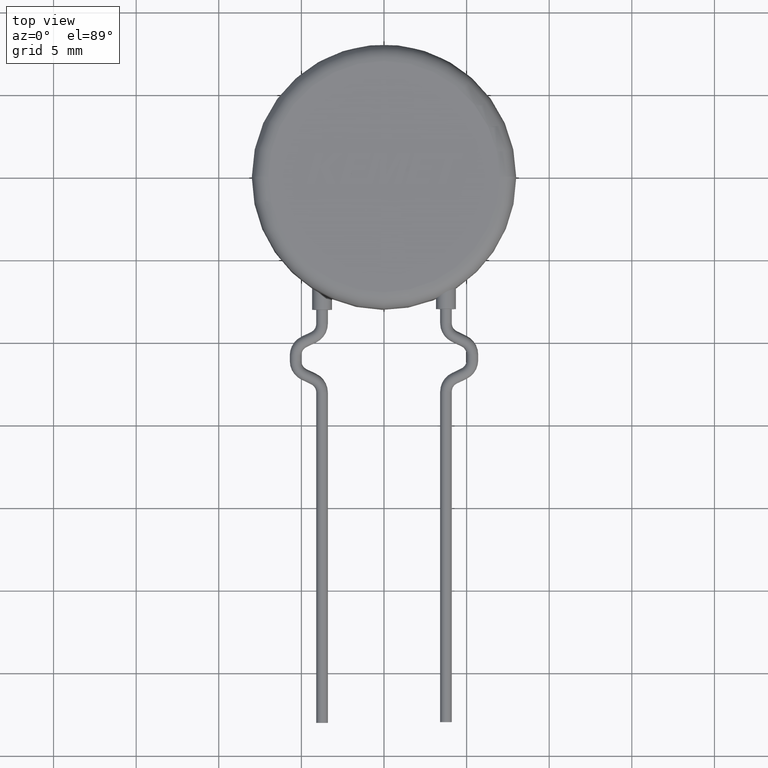
[diagram: clean part render]
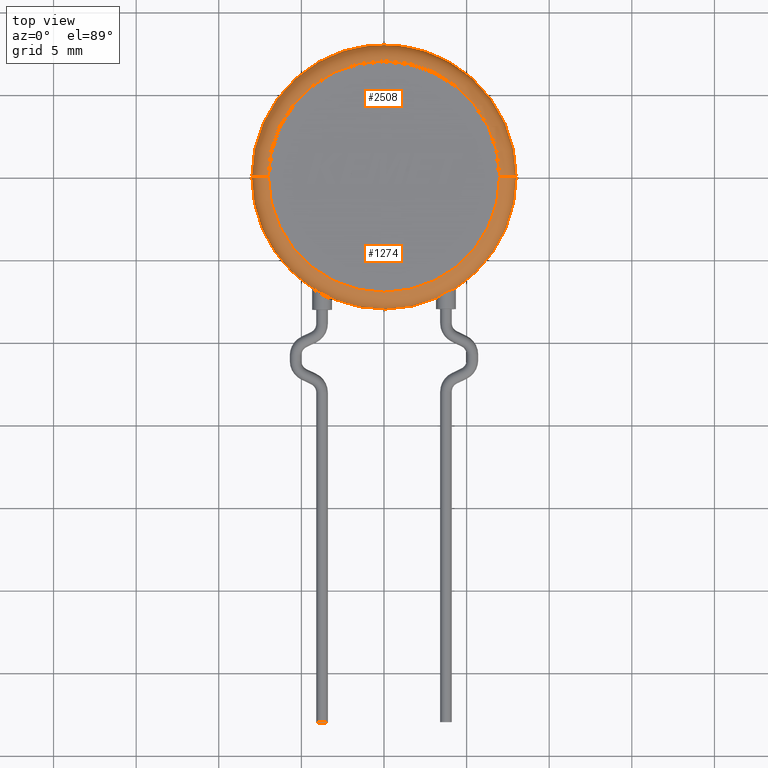
[diagram: same view with one multi-face feature highlighted, each face labeled with its STEP entity id]
A machine part, top view. The highlighted faces form ONE feature: a constant-radius fillet chain: 2 tangent blend faces with common blend radius 1 mm. The faces share edges in the B-rep.
Their STEP definitions:
[1] entity #2508 (Torus):
#106 = DIRECTION ( 'NONE',  ( 0.000000000000000000, 0.000000000000000000, 1.000000000000000000 ) ) ;
#355 = DIRECTION ( 'NONE',  ( 0.000000000000000000, -1.000000000000000000, 0.000000000000000000 ) ) ;
#390 = DIRECTION ( 'NONE',  ( 0.000000000000000000, 0.000000000000000000, 1.000000000000000000 ) ) ;
#520 = AXIS2_PLACEMENT_3D ( 'NONE', #702, #390, #2395 ) ;
#702 = CARTESIAN_POINT ( 'NONE',  ( 0.000000000000000000, 0.000000000000000000, 5.000000000000000000 ) ) ;
#885 = VERTEX_POINT ( 'NONE', #4137 ) ;
#988 = TOROIDAL_SURFACE ( 'NONE', #3443, 7.000000000000000000, 1.000000000000000000 ) ;
#995 = DIRECTION ( 'NONE',  ( 1.000000000000000000, 0.000000000000000000, 0.000000000000000000 ) ) ;
#1031 = DIRECTION ( 'NONE',  ( 0.000000000000000000, 0.000000000000000000, -1.000000000000000000 ) ) ;
#1271 = DIRECTION ( 'NONE',  ( -0.000000000000000000, -0.000000000000000000, -1.000000000000000000 ) ) ;
#1521 = FACE_OUTER_BOUND ( 'NONE', #3778, .T. ) ;
#1534 = ORIENTED_EDGE ( 'NONE', *, *, #3619, .F. ) ;
#1607 = CARTESIAN_POINT ( 'NONE',  ( 7.000000000000000000, 0.000000000000000000, 5.000000000000000000 ) ) ;
#1635 = ORIENTED_EDGE ( 'NONE', *, *, #2626, .F. ) ;
#1801 = ORIENTED_EDGE ( 'NONE', *, *, #2020, .F. ) ;
#1859 = VERTEX_POINT ( 'NONE', #1607 ) ;
#1976 = AXIS2_PLACEMENT_3D ( 'NONE', #3932, #2565, #1977 ) ;
#1977 = DIRECTION ( 'NONE',  ( -1.000000000000000000, 1.224646799147352468E-16, 0.000000000000000000 ) ) ;
#2011 = EDGE_CURVE ( 'NONE', #2862, #4199, #2804, .T. ) ;
#2020 = EDGE_CURVE ( 'NONE', #2862, #885, #2335, .T. ) ;
#2335 = CIRCLE ( 'NONE', #3378, 8.000000000000000000 ) ;
#2395 = DIRECTION ( 'NONE',  ( 1.000000000000000000, 0.000000000000000000, 0.000000000000000000 ) ) ;
#2508 = ADVANCED_FACE ( 'NONE', ( #1521 ), #988, .T. ) ;
#2565 = DIRECTION ( 'NONE',  ( 1.224646799147353207E-16, 1.000000000000000000, -0.000000000000000000 ) ) ;
#2601 = CIRCLE ( 'NONE', #520, 7.000000000000000000 ) ;
#2626 = EDGE_CURVE ( 'NONE', #1859, #4199, #2601, .T. ) ;
#2804 = CIRCLE ( 'NONE', #1976, 1.000000000000000000 ) ;
#2862 = VERTEX_POINT ( 'NONE', #3436 ) ;
#3166 = CARTESIAN_POINT ( 'NONE',  ( 0.000000000000000000, 0.000000000000000000, 4.000000000000000000 ) ) ;
#3307 = DIRECTION ( 'NONE',  ( 1.000000000000000000, 0.000000000000000000, 0.000000000000000000 ) ) ;
#3378 = AXIS2_PLACEMENT_3D ( 'NONE', #3913, #1271, #3307 ) ;
#3436 = CARTESIAN_POINT ( 'NONE',  ( -8.000000000000000000, 0.000000000000000000, 4.000000000000000000 ) ) ;
#3443 = AXIS2_PLACEMENT_3D ( 'NONE', #3166, #106, #995 ) ;
#3606 = AXIS2_PLACEMENT_3D ( 'NONE', #4324, #355, #1031 ) ;
#3619 = EDGE_CURVE ( 'NONE', #885, #1859, #4037, .T. ) ;
#3778 = EDGE_LOOP ( 'NONE', ( #1801, #4046, #1635, #1534 ) ) ;
#3859 = CARTESIAN_POINT ( 'NONE',  ( -7.000000000000000000, 9.184850993605147944E-16, 5.000000000000000000 ) ) ;
#3913 = CARTESIAN_POINT ( 'NONE',  ( 0.000000000000000000, 0.000000000000000000, 4.000000000000000000 ) ) ;
#3932 = CARTESIAN_POINT ( 'NONE',  ( -7.000000000000000000, 8.572527594031473190E-16, 4.000000000000000000 ) ) ;
#4037 = CIRCLE ( 'NONE', #3606, 1.000000000000000000 ) ;
#4046 = ORIENTED_EDGE ( 'NONE', *, *, #2011, .T. ) ;
#4137 = CARTESIAN_POINT ( 'NONE',  ( 8.000000000000000000, 9.797174393178825657E-16, 4.000000000000000000 ) ) ;
#4199 = VERTEX_POINT ( 'NONE', #3859 ) ;
#4324 = CARTESIAN_POINT ( 'NONE',  ( 7.000000000000000000, 0.000000000000000000, 4.000000000000000000 ) ) ;
[2] entity #1274 (Torus):
#32 = CIRCLE ( 'NONE', #3165, 8.000000000000000000 ) ;
#115 = CARTESIAN_POINT ( 'NONE',  ( 0.000000000000000000, 0.000000000000000000, 4.000000000000000000 ) ) ;
#178 = CARTESIAN_POINT ( 'NONE',  ( 3.184314575050757323, -7.338946837736279427, 3.999999999999999112 ) ) ;
#315 = VERTEX_POINT ( 'NONE', #178 ) ;
#324 = B_SPLINE_CURVE_WITH_KNOTS ( 'NONE', 3,
 ( #2242, #524, #2907, #863, #2224, #3580, #2549, #1912, #1585, #3244 ),
 .UNSPECIFIED., .F., .F.,
 ( 4, 2, 2, 2, 4 ),
 ( 2.138220758068250357E-07, 0.0004002225353560238258, 0.0008002312486362408170, 0.001200239961916457808, 0.001600248675196674691 ),
 .UNSPECIFIED. ) ;
#355 = DIRECTION ( 'NONE',  ( 0.000000000000000000, -1.000000000000000000, 0.000000000000000000 ) ) ;
#361 = ORIENTED_EDGE ( 'NONE', *, *, #1338, .F. ) ;
#399 = EDGE_CURVE ( 'NONE', #885, #4079, #32, .T. ) ;
#524 = CARTESIAN_POINT ( 'NONE',  ( 4.271595288225028320, -6.764334081646226515, 4.124705738644531827 ) ) ;
#571 = DIRECTION ( 'NONE',  ( 1.000000000000000000, 0.000000000000000000, 0.000000000000000000 ) ) ;
#659 = DIRECTION ( 'NONE',  ( 1.000000000000000000, 0.000000000000000000, 0.000000000000000000 ) ) ;
#677 = EDGE_LOOP ( 'NONE', ( #1301, #4001, #1944, #1643, #4341, #361 ) ) ;
#863 = CARTESIAN_POINT ( 'NONE',  ( 3.970558724915502324, -6.866331706948209046, 4.372695072718233433 ) ) ;
#885 = VERTEX_POINT ( 'NONE', #4137 ) ;
#1031 = DIRECTION ( 'NONE',  ( 0.000000000000000000, 0.000000000000000000, -1.000000000000000000 ) ) ;
#1274 = ADVANCED_FACE ( 'NONE', ( #3552 ), #4011, .T. ) ;
#1301 = ORIENTED_EDGE ( 'NONE', *, *, #2011, .F. ) ;
#1338 = EDGE_CURVE ( 'NONE', #4199, #1859, #3151, .T. ) ;
#1413 = CARTESIAN_POINT ( 'NONE',  ( 0.000000000000000000, 0.000000000000000000, 4.000000000000000000 ) ) ;
#1470 = AXIS2_PLACEMENT_3D ( 'NONE', #2354, #4328, #571 ) ;
#1504 = AXIS2_PLACEMENT_3D ( 'NONE', #1413, #1516, #4315 ) ;
#1516 = DIRECTION ( 'NONE',  ( -0.000000000000000000, -0.000000000000000000, -1.000000000000000000 ) ) ;
#1585 = CARTESIAN_POINT ( 'NONE',  ( 3.229094042919705920, -7.319517358909735982, 4.126655461556151039 ) ) ;
#1607 = CARTESIAN_POINT ( 'NONE',  ( 7.000000000000000000, 0.000000000000000000, 5.000000000000000000 ) ) ;
#1643 = ORIENTED_EDGE ( 'NONE', *, *, #399, .F. ) ;
#1859 = VERTEX_POINT ( 'NONE', #1607 ) ;
#1912 = CARTESIAN_POINT ( 'NONE',  ( 3.311561010046651710, -7.257699553184878916, 4.225419199232721468 ) ) ;
#1924 = DIRECTION ( 'NONE',  ( 0.000000000000000000, 0.000000000000000000, 1.000000000000000000 ) ) ;
#1944 = ORIENTED_EDGE ( 'NONE', *, *, #2449, .F. ) ;
#1951 = CARTESIAN_POINT ( 'NONE',  ( 0.000000000000000000, 0.000000000000000000, 4.000000000000000000 ) ) ;
#1976 = AXIS2_PLACEMENT_3D ( 'NONE', #3932, #2565, #1977 ) ;
#1977 = DIRECTION ( 'NONE',  ( -1.000000000000000000, 1.224646799147352468E-16, 0.000000000000000000 ) ) ;
#2011 = EDGE_CURVE ( 'NONE', #2862, #4199, #2804, .T. ) ;
#2224 = CARTESIAN_POINT ( 'NONE',  ( 3.845227405366377749, -6.919274642419720678, 4.403917565275437873 ) ) ;
#2242 = CARTESIAN_POINT ( 'NONE',  ( 4.315685424949240456, -6.736086349868201317, 4.000000000000000000 ) ) ;
#2301 = CARTESIAN_POINT ( 'NONE',  ( 4.315685424949240456, -6.736086349868201317, 4.000000000000000000 ) ) ;
#2354 = CARTESIAN_POINT ( 'NONE',  ( 0.000000000000000000, 0.000000000000000000, 5.000000000000000000 ) ) ;
#2449 = EDGE_CURVE ( 'NONE', #4079, #315, #324, .T. ) ;
#2549 = CARTESIAN_POINT ( 'NONE',  ( 3.499816446517593604, -7.124081684425735972, 4.357331528404806420 ) ) ;
#2555 = CIRCLE ( 'NONE', #1504, 8.000000000000000000 ) ;
#2565 = DIRECTION ( 'NONE',  ( 1.224646799147353207E-16, 1.000000000000000000, -0.000000000000000000 ) ) ;
#2804 = CIRCLE ( 'NONE', #1976, 1.000000000000000000 ) ;
#2862 = VERTEX_POINT ( 'NONE', #3436 ) ;
#2907 = CARTESIAN_POINT ( 'NONE',  ( 4.186366468791872464, -6.789539715780639639, 4.231520685907645962 ) ) ;
#3151 = CIRCLE ( 'NONE', #1470, 7.000000000000000000 ) ;
#3165 = AXIS2_PLACEMENT_3D ( 'NONE', #1951, #4065, #659 ) ;
#3244 = CARTESIAN_POINT ( 'NONE',  ( 3.184314575050757323, -7.338946837736279427, 3.999999999999999112 ) ) ;
#3436 = CARTESIAN_POINT ( 'NONE',  ( -8.000000000000000000, 0.000000000000000000, 4.000000000000000000 ) ) ;
#3552 = FACE_OUTER_BOUND ( 'NONE', #677, .T. ) ;
#3580 = CARTESIAN_POINT ( 'NONE',  ( 3.610570371422826330, -7.048802370124122696, 4.395268059831749952 ) ) ;
#3606 = AXIS2_PLACEMENT_3D ( 'NONE', #4324, #355, #1031 ) ;
#3619 = EDGE_CURVE ( 'NONE', #885, #1859, #4037, .T. ) ;
#3664 = AXIS2_PLACEMENT_3D ( 'NONE', #115, #1924, #3839 ) ;
#3839 = DIRECTION ( 'NONE',  ( 1.000000000000000000, 0.000000000000000000, 0.000000000000000000 ) ) ;
#3859 = CARTESIAN_POINT ( 'NONE',  ( -7.000000000000000000, 9.184850993605147944E-16, 5.000000000000000000 ) ) ;
#3932 = CARTESIAN_POINT ( 'NONE',  ( -7.000000000000000000, 8.572527594031473190E-16, 4.000000000000000000 ) ) ;
#4001 = ORIENTED_EDGE ( 'NONE', *, *, #4343, .F. ) ;
#4011 = TOROIDAL_SURFACE ( 'NONE', #3664, 7.000000000000000000, 1.000000000000000000 ) ;
#4037 = CIRCLE ( 'NONE', #3606, 1.000000000000000000 ) ;
#4065 = DIRECTION ( 'NONE',  ( -0.000000000000000000, -0.000000000000000000, -1.000000000000000000 ) ) ;
#4079 = VERTEX_POINT ( 'NONE', #2301 ) ;
#4137 = CARTESIAN_POINT ( 'NONE',  ( 8.000000000000000000, 9.797174393178825657E-16, 4.000000000000000000 ) ) ;
#4199 = VERTEX_POINT ( 'NONE', #3859 ) ;
#4315 = DIRECTION ( 'NONE',  ( 1.000000000000000000, 0.000000000000000000, 0.000000000000000000 ) ) ;
#4324 = CARTESIAN_POINT ( 'NONE',  ( 7.000000000000000000, 0.000000000000000000, 4.000000000000000000 ) ) ;
#4328 = DIRECTION ( 'NONE',  ( 0.000000000000000000, 0.000000000000000000, 1.000000000000000000 ) ) ;
#4341 = ORIENTED_EDGE ( 'NONE', *, *, #3619, .T. ) ;
#4343 = EDGE_CURVE ( 'NONE', #315, #2862, #2555, .T. ) ;